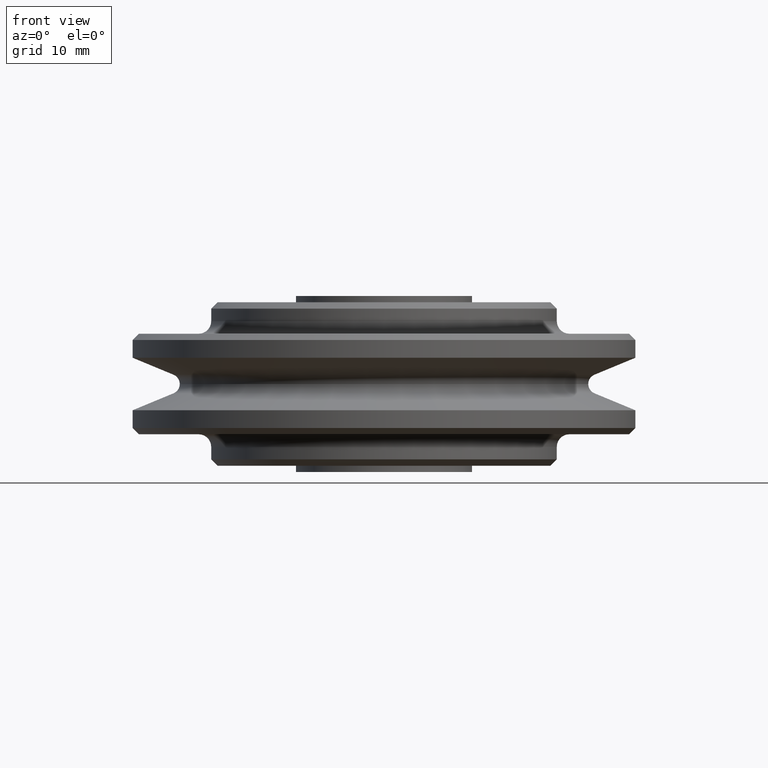
[diagram: clean part render]
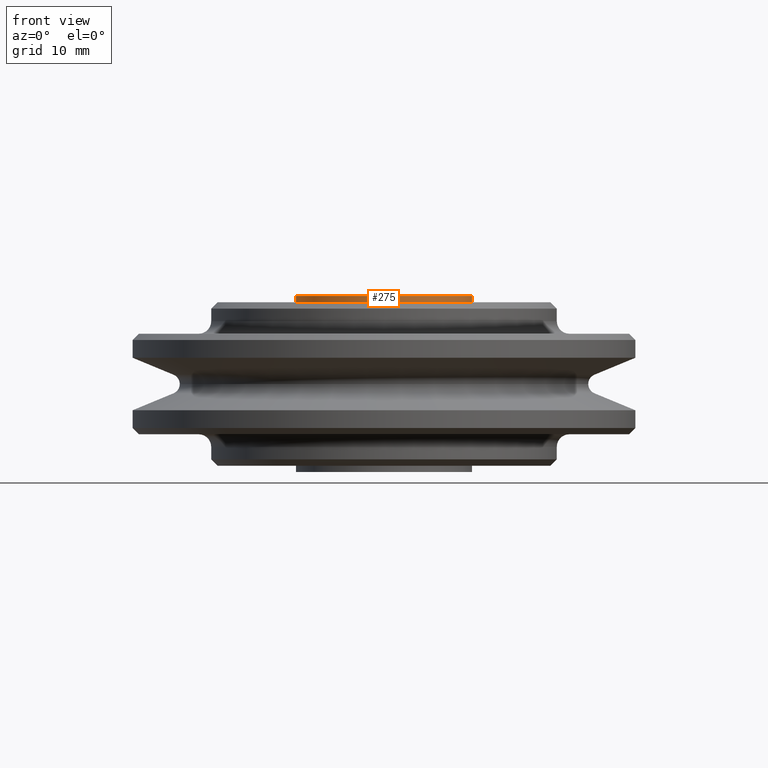
[diagram: same view with one face highlighted and labeled with its STEP entity id]
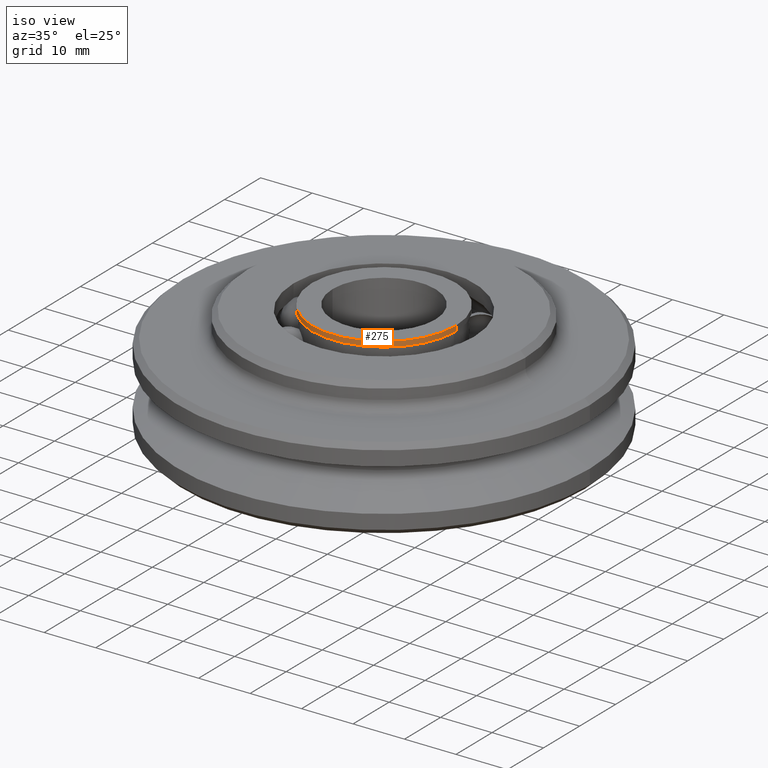
[diagram: same view with one face highlighted and labeled with its STEP entity id]
A machine part, front view. The second image highlights one B-rep face of the part: STEP entity #275.
A second angle (iso view) of the same face is appended — the face is thin or edge-on in the first view.
In plain terms, the highlighted cylindrical surface (partial cylindrical patch) has radius 14 mm, axis along (0, 0, 1).
Its self-contained STEP definition (entity closure, byte-faithful):
#275=ADVANCED_FACE('',(#616),#617,.T.);
#616=FACE_OUTER_BOUND('',#1026,.T.);
#617=CYLINDRICAL_SURFACE('',#1027,14.0);
#1026=EDGE_LOOP('',(#1883,#1884,#1885,#1886));
#1027=AXIS2_PLACEMENT_3D('',#1887,#1888,#1889);
#1883=ORIENTED_EDGE('',*,*,#2938,.T.);
#1884=ORIENTED_EDGE('',*,*,#2958,.F.);
#1885=ORIENTED_EDGE('',*,*,#2940,.T.);
#1886=ORIENTED_EDGE('',*,*,#2955,.F.);
#1887=CARTESIAN_POINT('',(0.0,0.0,13.5));
#1888=DIRECTION('',(0.0,0.0,1.0));
#1889=DIRECTION('',(1.0,0.0,0.0));
#2938=EDGE_CURVE('',#3731,#3732,#3733,.T.);
#2940=EDGE_CURVE('',#3736,#3734,#3737,.T.);
#2955=EDGE_CURVE('',#3731,#3734,#3756,.T.);
#2958=EDGE_CURVE('',#3736,#3732,#3759,.T.);
#3731=VERTEX_POINT('',#7070);
#3732=VERTEX_POINT('',#7071);
#3733=LINE('',#7072,#7073);
#3734=VERTEX_POINT('',#7074);
#3736=VERTEX_POINT('',#7076);
#3737=LINE('',#7077,#7078);
#3756=CIRCLE('',#7099,14.0);
#3759=CIRCLE('',#7102,14.0);
#7070=CARTESIAN_POINT('',(14.0,0.0,13.0));
#7071=CARTESIAN_POINT('',(14.0,0.0,14.0));
#7072=CARTESIAN_POINT('',(14.0,-1.71450551880629E-015,13.5));
#7073=VECTOR('',#8580,1.0);
#7074=CARTESIAN_POINT('',(-14.0,1.71450551880629E-015,13.0));
#7076=CARTESIAN_POINT('',(-14.0,1.71450551880629E-015,14.0));
#7077=CARTESIAN_POINT('',(-14.0,1.71450551880629E-015,13.5));
#7078=VECTOR('',#8584,1.0);
#7099=AXIS2_PLACEMENT_3D('',#8608,#8609,#8610);
#7102=AXIS2_PLACEMENT_3D('',#8614,#8615,#8616);
#8580=DIRECTION('',(0.0,0.0,1.0));
#8584=DIRECTION('',(-0.0,-0.0,-1.0));
#8608=CARTESIAN_POINT('',(0.0,0.0,13.0));
#8609=DIRECTION('',(0.0,0.0,-1.0));
#8610=DIRECTION('',(1.0,0.0,0.0));
#8614=CARTESIAN_POINT('',(0.0,0.0,14.0));
#8615=DIRECTION('',(0.0,0.0,1.0));
#8616=DIRECTION('',(1.0,0.0,0.0));